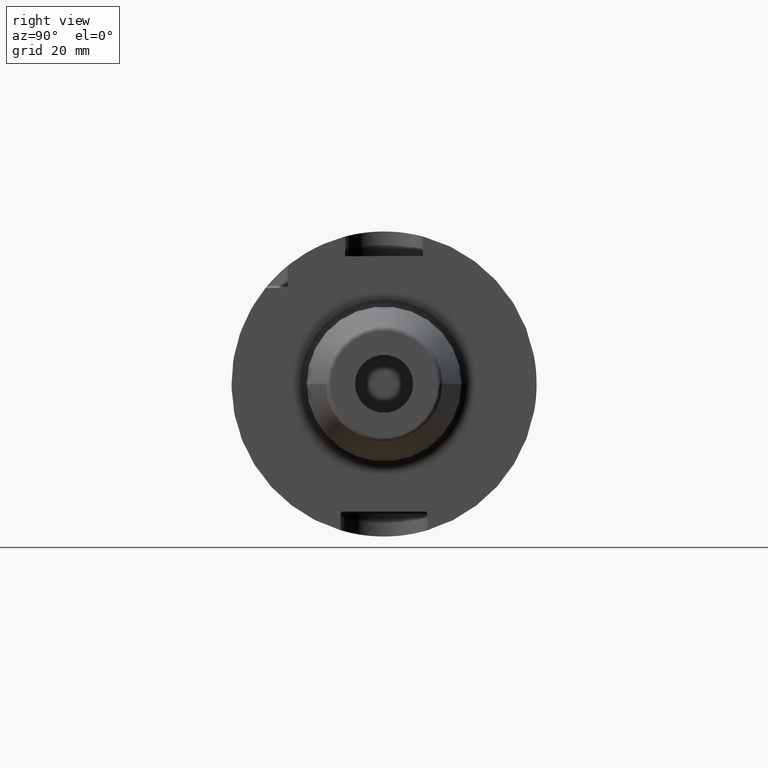
[diagram: clean part render]
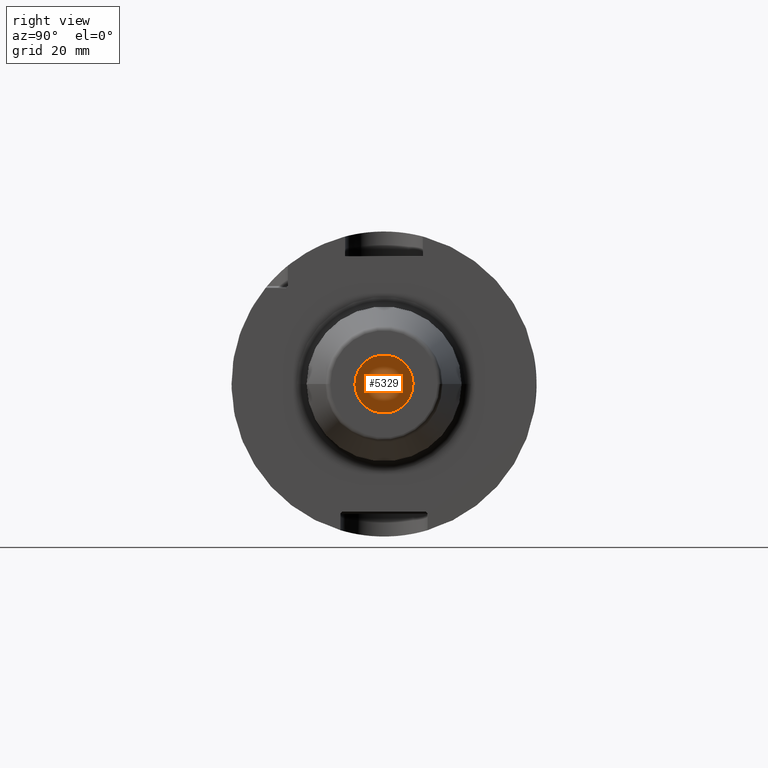
[diagram: same view with one face highlighted and labeled with its STEP entity id]
A machine part, right view. The second image highlights one B-rep face of the part: STEP entity #5329.
In plain terms, the highlighted planar face has unit normal (1, 0, 0).
Its self-contained STEP definition (entity closure, byte-faithful):
#2050=CARTESIAN_POINT('',(4.3E1,0.E0,0.E0));
#2051=DIRECTION('',(-1.E0,0.E0,0.E0));
#2052=DIRECTION('',(0.E0,1.E0,0.E0));
#2053=AXIS2_PLACEMENT_3D('',#2050,#2051,#2052);
#2055=CARTESIAN_POINT('',(4.3E1,0.E0,0.E0));
#2056=DIRECTION('',(1.E0,0.E0,0.E0));
#2057=DIRECTION('',(0.E0,1.E0,0.E0));
#2058=AXIS2_PLACEMENT_3D('',#2055,#2056,#2057);
#3056=CARTESIAN_POINT('',(4.3E1,6.E0,0.E0));
#3057=CARTESIAN_POINT('',(4.3E1,-6.E0,0.E0));
#3058=VERTEX_POINT('',#3056);
#3059=VERTEX_POINT('',#3057);
#5320=CARTESIAN_POINT('',(4.3E1,0.E0,0.E0));
#5321=DIRECTION('',(1.E0,0.E0,0.E0));
#5322=DIRECTION('',(0.E0,-1.E0,0.E0));
#5323=AXIS2_PLACEMENT_3D('',#5320,#5321,#5322);
#5324=PLANE('',#5323);
#5325=ORIENTED_EDGE('',*,*,#5314,.T.);
#5326=ORIENTED_EDGE('',*,*,#5300,.F.);
#5327=EDGE_LOOP('',(#5325,#5326));
#5328=FACE_OUTER_BOUND('',#5327,.F.);
#5329=ADVANCED_FACE('',(#5328),#5324,.T.);
#2054=CIRCLE('',#2053,6.E0);
#2059=CIRCLE('',#2058,6.E0);
#5300=EDGE_CURVE('',#3058,#3059,#2059,.T.);
#5314=EDGE_CURVE('',#3058,#3059,#2054,.T.);